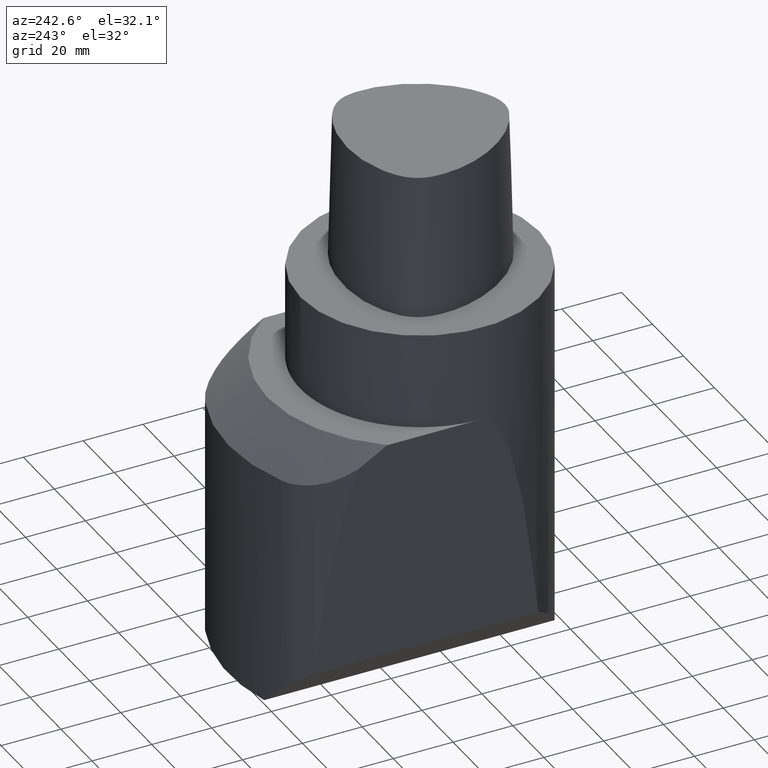
[diagram: clean part render]
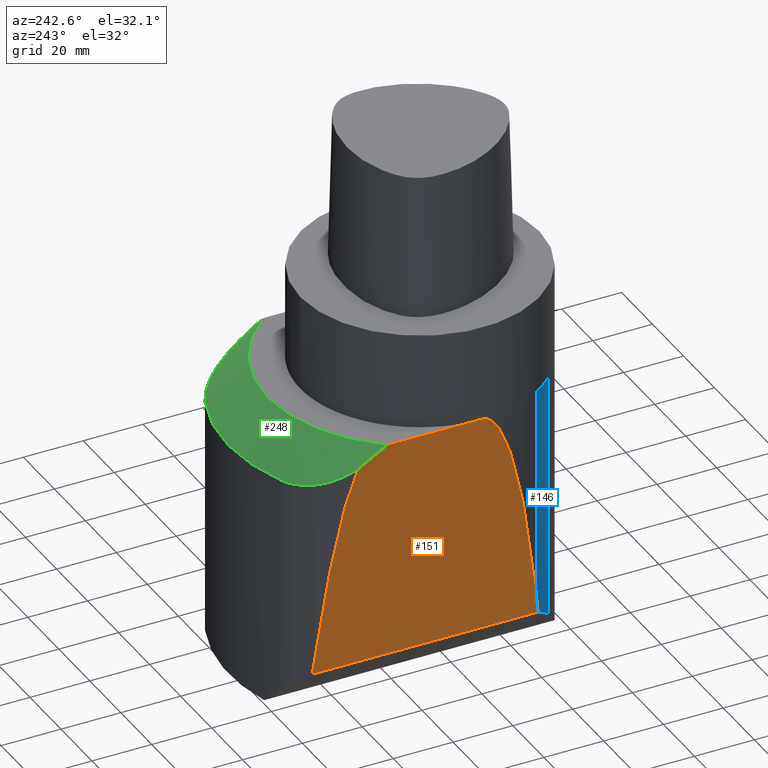
[diagram: same view with three faces highlighted in distinct colors, each labeled with its STEP entity id]
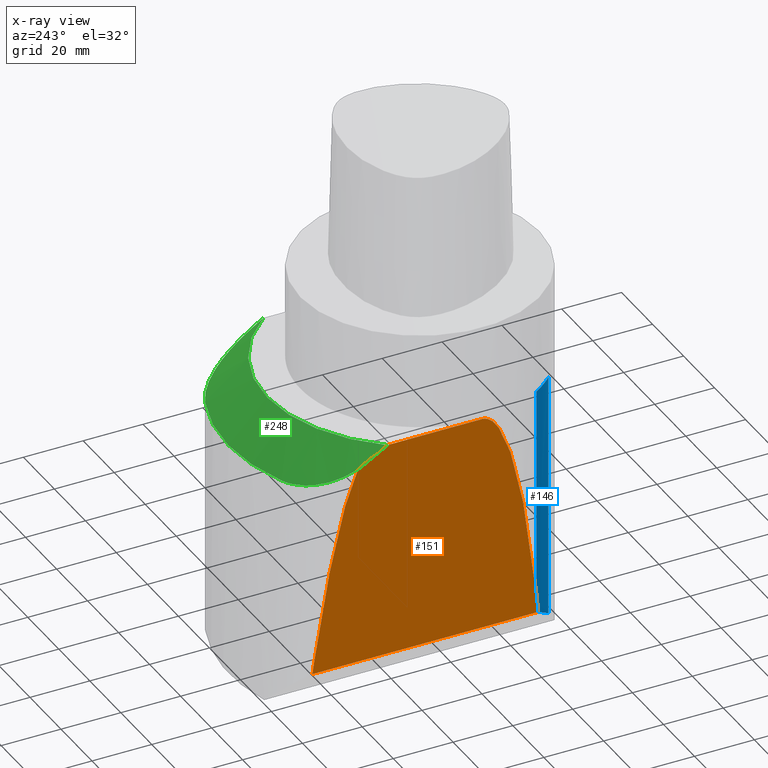
[diagram: x-ray of the same camera — body ghosted, the three highlighted faces saturated]
A machine part, auxiliary view with three faces highlighted in distinct colors.
The next image is the same camera in x-ray (body ghosted, the three faces saturated) — at least one of them is partly hidden behind the body in this view.
Their STEP definitions:

[orange] entity #151 — the highlighted planar face has unit normal (-0.9962, 0, -0.0872).
#107=EDGE_CURVE('240[2]',#309,#310,#311,.T.);
#151=ADVANCED_FACE('240[2]',(#377),#378,.T.);
#157=EDGE_CURVE('240[2]',#385,#386,#387,.T.);
#210=EDGE_CURVE('240[2]',#309,#325,#455,.T.);
#228=EDGE_CURVE('240[2]',#410,#425,#478,.T.);
#238=EDGE_CURVE('240[2]',#425,#325,#490,.F.);
#250=EDGE_CURVE('240[2]',#386,#410,#504,.T.);
#257=EDGE_CURVE('240[2]',#310,#385,#514,.T.);
#309=VERTEX_POINT('',#564);
#310=VERTEX_POINT('',#565);
#311=ELLIPSE('',#566,458.948523763496,40.0000000000002);
#325=VERTEX_POINT('',#679);
#377=FACE_OUTER_BOUND('',#823,.T.);
#378=PLANE('',#824);
#385=VERTEX_POINT('',#834);
#386=VERTEX_POINT('',#835);
#387=(B_SPLINE_CURVE(2,(#837,#838,#839),.UNSPECIFIED.,.F.,.F.)B_SPLINE_CURVE_WITH_KNOTS((3,3),(-683.893047471519,-605.25520069249),.UNSPECIFIED.)RATIONAL_B_SPLINE_CURVE((8.00431166488062,7.80084808983328,7.55156646224911))BOUNDED_CURVE()REPRESENTATION_ITEM('')GEOMETRIC_REPRESENTATION_ITEM()CURVE());
#410=VERTEX_POINT('',#880);
#425=VERTEX_POINT('',#938);
#455=B_SPLINE_CURVE_WITH_KNOTS('',3,(#989,#990,#991,#992),.UNSPECIFIED.,.F.,.F.,(4,4),(104.336746721873,111.165197061274),.UNSPECIFIED.);
#478=B_SPLINE_CURVE_WITH_KNOTS('',3,(#1413,#1414,#1415,#1416,#1417,#1418),.UNSPECIFIED.,.F.,.F.,(4,2,4),(-157.671110531272,-154.712107657172,-151.817991678916),.UNSPECIFIED.);
#490=LINE('',#1433,#1434);
#504=ELLIPSE('',#1454,286.842827352184,25.0000000000001);
#514=LINE('',#1467,#1468);
#564=CARTESIAN_POINT('',(-33.7969778634041,-21.3954267847245,-102.900866511766));
#565=CARTESIAN_POINT('',(-39.9999999999993,6.82121026329696E-013,-32.000000000002));
#566=AXIS2_PLACEMENT_3D('',#1624,#1625,#1626);
#679=CARTESIAN_POINT('',(-33.1927473655532,-22.3213156473424,-109.807252613167));
#823=EDGE_LOOP('',(#1687,#1688,#1689,#1690,#1691,#1692,#1693));
#824=AXIS2_PLACEMENT_3D('',#1694,#1695,#1696);
#834=CARTESIAN_POINT('',(-39.9999999999991,31.6385840391139,-32.0000000000025));
#835=CARTESIAN_POINT('',(-39.476915664123,41.0872978654076,-37.978881317847));
#837=CARTESIAN_POINT('',(-39.9999999999291,31.6385840391341,-31.9999999999601));
#838=CARTESIAN_POINT('',(-39.7724379890203,36.1190566330475,-34.6010456521432));
#839=CARTESIAN_POINT('',(-39.4769156573647,41.0872978674441,-37.978881314633));
#880=CARTESIAN_POINT('',(-33.6636013333268,52.6333996907019,-104.425367206216));
#938=CARTESIAN_POINT('',(-33.1927473655513,53.147149727209,-109.80725261317));
#989=CARTESIAN_POINT('',(-33.7969778634041,-21.3954267847245,-102.900866511766));
#990=CARTESIAN_POINT('',(-33.6072448787171,-21.6951357621519,-105.069524421427));
#991=CARTESIAN_POINT('',(-33.4175394624925,-21.9870632463833,-107.237867222108));
#992=CARTESIAN_POINT('',(-33.1927473655532,-22.3213156473424,-109.807252613167));
#1413=CARTESIAN_POINT('',(-33.6636013333268,52.6333996907019,-104.425367206216));
#1414=CARTESIAN_POINT('',(-33.6241078454418,52.6777140657456,-104.876779832351));
#1415=CARTESIAN_POINT('',(-33.5537778230764,52.7564182292292,-105.680655655739));
#1416=CARTESIAN_POINT('',(-33.3727597581197,52.9547045859767,-107.749701578395));
#1417=CARTESIAN_POINT('',(-33.2825779214066,53.0518652033815,-108.780484675027));
#1418=CARTESIAN_POINT('',(-33.1927473655513,53.147149727209,-109.80725261317));
#1433=CARTESIAN_POINT('',(-33.1927473655551,-162.24514126896,-109.807252613163));
#1434=VECTOR('',#1805,1.0);
#1454=AXIS2_PLACEMENT_3D('',#1831,#1832,#1833);
#1467=CARTESIAN_POINT('',(-39.9999999999991,6.82121026329696E-013,-32.0000000000025));
#1468=VECTOR('',#1848,27.4531951389418);
#1624=CARTESIAN_POINT('',(8.22696294472897E-013,7.38964445190504E-013,-489.202086023152));
#1625=DIRECTION('',(-0.996194697991007,1.06735002793336E-017,-0.0871557438990976));
#1626=DIRECTION('',(0.0871557438990976,1.32672165101559E-016,-0.996194697991008));
#1687=ORIENTED_EDGE('',*,*,#157,.T.);
#1688=ORIENTED_EDGE('',*,*,#250,.T.);
#1689=ORIENTED_EDGE('',*,*,#228,.T.);
#1690=ORIENTED_EDGE('',*,*,#238,.T.);
#1691=ORIENTED_EDGE('',*,*,#210,.F.);
#1692=ORIENTED_EDGE('',*,*,#107,.T.);
#1693=ORIENTED_EDGE('',*,*,#257,.T.);
#1694=CARTESIAN_POINT('',(-36.9135946481598,-162.24514126896,-67.2777741285733));
#1695=DIRECTION('',(-0.996194697991008,1.06735002793336E-017,-0.0871557438990975));
#1696=DIRECTION('',(-0.0871557438990975,0.0,0.996194697991008));
#1805=DIRECTION('',(-3.59545812250935E-032,1.0,1.22464679914735E-016));
#1831=CARTESIAN_POINT('',(-14.9999999999992,36.0000000000009,-317.751303764155));
#1832=DIRECTION('',(-0.996194697991008,1.06735002793336E-017,-0.0871557438990975));
#1833=DIRECTION('',(0.0871557438990975,1.32672165101559E-016,-0.996194697991008));
#1848=DIRECTION('',(0.0,1.0,0.0));

[blue] entity #146 — the highlighted face is a freeform B-spline surface patch.
#117=EDGE_CURVE('240[2]',#324,#325,#326,.T.);
#121=EDGE_CURVE('240[2]',#324,#332,#333,.T.);
#146=ADVANCED_FACE('240[2]',(#370),#371,.T.);
#155=EDGE_CURVE('240[2]',#332,#382,#383,.T.);
#208=EDGE_CURVE('240[2]',#309,#382,#453,.T.);
#210=EDGE_CURVE('240[2]',#309,#325,#455,.T.);
#309=VERTEX_POINT('',#564);
#324=VERTEX_POINT('',#678);
#325=VERTEX_POINT('',#679);
#326=B_SPLINE_CURVE_WITH_KNOTS('',3,(#680,#681,#682,#683,#684,#685,#686,#687,#688,#689,#690,#691),.UNSPECIFIED.,.F.,.F.,(4,2,2,2,2,4),(-175.538141070274,-175.479261481458,-175.15793466903,-174.392329393093,-171.030326775526,-170.093878497624),.UNSPECIFIED.);
#332=VERTEX_POINT('',#699);
#333=LINE('',#700,#701);
#370=FACE_OUTER_BOUND('',#754,.T.);
#371=B_SPLINE_SURFACE_WITH_KNOTS('',3,1,((#755,#756,#757),(#758,#759,#760),(#761,#762,#763),(#764,#765,#766),(#767,#768,#769),(#770,#771,#772),(#773,#774,#775),(#776,#777,#778),(#779,#780,#781),(#782,#783,#784),(#785,#786,#787),(#788,#789,#790),(#791,#792,#793),(#794,#795,#796),(#797,#798,#799),(#800,#801,#802),(#803,#804,#805),(#806,#807,#808),(#809,#810,#811),(#812,#813,#814)),.UNSPECIFIED.,.F.,.F.,.F.,(4,3,2,2,2,2,2,3,4),(2,1,2),(-63.2741086176597,0.0,0.0175600176839423,0.148866729432548,0.411480152929759,0.674093576426971,0.936706999924182,1.0,13.1942042593001),(-25.3342554178215,111.18791682274,236.18791682274),.UNSPECIFIED.);
#382=VERTEX_POINT('',#830);
#383=CIRCLE('',#831,40.0067927914064);
#453=LINE('',#985,#986);
#455=B_SPLINE_CURVE_WITH_KNOTS('',3,(#989,#990,#991,#992),.UNSPECIFIED.,.F.,.F.,(4,4),(104.336746721873,111.165197061274),.UNSPECIFIED.);
#564=CARTESIAN_POINT('',(-33.7969778634041,-21.3954267847245,-102.900866511766));
#678=CARTESIAN_POINT('',(-28.2905413646907,-28.2779997399503,-114.709458599246));
#679=CARTESIAN_POINT('',(-33.1927473655532,-22.3213156473424,-109.807252613167));
#680=CARTESIAN_POINT('',(-28.2905413646907,-28.2779997399503,-114.709458599246));
#681=CARTESIAN_POINT('',(-28.309842062676,-28.258690481879,-114.690157901319));
#682=CARTESIAN_POINT('',(-28.3291295821897,-28.2393548483322,-114.670870381864));
#683=CARTESIAN_POINT('',(-28.4535903780425,-28.1143275072564,-114.546409586386));
#684=CARTESIAN_POINT('',(-28.5583980496744,-28.0078608855346,-114.44160191507));
#685=CARTESIAN_POINT('',(-28.9115006445737,-27.645113240572,-114.088499321236));
#686=CARTESIAN_POINT('',(-29.1539161039658,-27.3892416967969,-113.846083862575));
#687=CARTESIAN_POINT('',(-30.461521996051,-25.9714413006834,-112.538477974433));
#688=CARTESIAN_POINT('',(-31.4710181159656,-24.7413436216045,-111.528981857561));
#689=CARTESIAN_POINT('',(-32.6714875595446,-23.0819154087392,-110.328512417602));
#690=CARTESIAN_POINT('',(-32.935289492501,-22.7041401032962,-110.064710485442));
#691=CARTESIAN_POINT('',(-33.1927473655532,-22.3213156473424,-109.807252613167));
#699=CARTESIAN_POINT('',(-28.2905413646907,-28.2779997399503,-32.0000000000016));
#700=CARTESIAN_POINT('',(-28.2905413646907,-28.2779997399503,-114.705134762494));
#701=VECTOR('',#1647,82.7051347624924);
#754=EDGE_LOOP('',(#1680,#1681,#1682,#1683,#1684));
#755=CARTESIAN_POINT('',(-113.616978290069,104.691087616467,-261.522172240565));
#756=CARTESIAN_POINT('',(-113.616978290069,104.691087616467,-125.000000000003));
#757=CARTESIAN_POINT('',(-113.616978290069,104.691087616467,-2.72848410531878E-012));
#758=CARTESIAN_POINT('',(-87.0103114811805,62.6622494827363,-261.522172240565));
#759=CARTESIAN_POINT('',(-87.0103114811805,62.6622494827363,-125.000000000003));
#760=CARTESIAN_POINT('',(-87.0103114811805,62.6622494827363,-2.72848410531878E-012));
#761=CARTESIAN_POINT('',(-60.4036446722923,20.6334113490061,-261.522172240565));
#762=CARTESIAN_POINT('',(-60.4036446722923,20.6334113490061,-125.000000000003));
#763=CARTESIAN_POINT('',(-60.4036446722923,20.6334113490061,-2.72848410531878E-012));
#764=CARTESIAN_POINT('',(-33.796977863404,-21.3954267847242,-261.522172240565));
#765=CARTESIAN_POINT('',(-33.796977863404,-21.3954267847242,-125.000000000003));
#766=CARTESIAN_POINT('',(-33.796977863404,-21.3954267847242,-2.72848410531878E-012));
#767=CARTESIAN_POINT('',(-33.7895939025726,-21.407090752135,-261.522172240565));
#768=CARTESIAN_POINT('',(-33.7895939025726,-21.407090752135,-125.000000000003));
#769=CARTESIAN_POINT('',(-33.7895939025726,-21.407090752135,-2.72848410531878E-012));
#770=CARTESIAN_POINT('',(-33.7816577044912,-21.4196137539597,-261.522172240565));
#771=CARTESIAN_POINT('',(-33.7816577044912,-21.4196137539597,-125.000000000003));
#772=CARTESIAN_POINT('',(-33.7816577044912,-21.4196137539597,-2.72848410531878E-012));
#773=CARTESIAN_POINT('',(-33.7097436643099,-21.5329328249091,-261.522172240565));
#774=CARTESIAN_POINT('',(-33.7097436643099,-21.5329328249091,-125.000000000003));
#775=CARTESIAN_POINT('',(-33.7097436643099,-21.5329328249091,-2.72848410531878E-012));
#776=CARTESIAN_POINT('',(-33.6157367939555,-21.6802256330895,-261.522172240565));
#777=CARTESIAN_POINT('',(-33.6157367939555,-21.6802256330895,-125.000000000003));
#778=CARTESIAN_POINT('',(-33.6157367939555,-21.6802256330895,-2.72848410531878E-012));
#779=CARTESIAN_POINT('',(-33.2492169109592,-22.2416130067496,-261.522172240565));
#780=CARTESIAN_POINT('',(-33.2492169109592,-22.2416130067496,-125.000000000003));
#781=CARTESIAN_POINT('',(-33.2492169109592,-22.2416130067496,-2.72848410531878E-012));
#782=CARTESIAN_POINT('',(-32.8920078719621,-22.7751598354021,-261.522172240565));
#783=CARTESIAN_POINT('',(-32.8920078719621,-22.7751598354021,-125.000000000003));
#784=CARTESIAN_POINT('',(-32.8920078719621,-22.7751598354021,-2.72848410531878E-012));
#785=CARTESIAN_POINT('',(-31.991754842178,-24.0233159523287,-261.522172240565));
#786=CARTESIAN_POINT('',(-31.991754842178,-24.0233159523287,-125.000000000003));
#787=CARTESIAN_POINT('',(-31.991754842178,-24.0233159523287,-2.72848410531878E-012));
#788=CARTESIAN_POINT('',(-31.447934505811,-24.7376991117969,-261.522172240565));
#789=CARTESIAN_POINT('',(-31.447934505811,-24.7376991117969,-125.000000000003));
#790=CARTESIAN_POINT('',(-31.447934505811,-24.7376991117969,-2.72848410531878E-012));
#791=CARTESIAN_POINT('',(-30.2217694003244,-26.2215750208795,-261.522172240565));
#792=CARTESIAN_POINT('',(-30.2217694003244,-26.2215750208795,-125.000000000003));
#793=CARTESIAN_POINT('',(-30.2217694003244,-26.2215750208795,-2.72848410531878E-012));
#794=CARTESIAN_POINT('',(-29.5389592417333,-26.9910292634445,-261.522172240565));
#795=CARTESIAN_POINT('',(-29.5389592417333,-26.9910292634445,-125.000000000003));
#796=CARTESIAN_POINT('',(-29.5389592417333,-26.9910292634445,-2.72848410531878E-012));
#797=CARTESIAN_POINT('',(-28.6506267037283,-27.9142167520785,-261.522172240565));
#798=CARTESIAN_POINT('',(-28.6506267037283,-27.9142167520785,-125.000000000003));
#799=CARTESIAN_POINT('',(-28.6506267037283,-27.9142167520785,-2.72848410531878E-012));
#800=CARTESIAN_POINT('',(-28.4730655503268,-28.0953946026959,-261.522172240565));
#801=CARTESIAN_POINT('',(-28.4730655503268,-28.0953946026959,-125.000000000003));
#802=CARTESIAN_POINT('',(-28.4730655503268,-28.0953946026959,-2.72848410531878E-012));
#803=CARTESIAN_POINT('',(-28.29054136469,-28.277999739951,-261.522172240565));
#804=CARTESIAN_POINT('',(-28.29054136469,-28.277999739951,-125.000000000003));
#805=CARTESIAN_POINT('',(-28.29054136469,-28.277999739951,-2.72848410531878E-012));
#806=CARTESIAN_POINT('',(6.87507251443359,-63.4592099815074,-261.522172240565));
#807=CARTESIAN_POINT('',(6.87507251443359,-63.4592099815074,-125.000000000003));
#808=CARTESIAN_POINT('',(6.87507251443359,-63.4592099815074,-2.72848410531878E-012));
#809=CARTESIAN_POINT('',(42.0406863935572,-98.6404202230638,-261.522172240565));
#810=CARTESIAN_POINT('',(42.0406863935572,-98.6404202230638,-125.000000000003));
#811=CARTESIAN_POINT('',(42.0406863935572,-98.6404202230638,-2.72848410531878E-012));
#812=CARTESIAN_POINT('',(77.2063002726808,-133.82163046462,-261.522172240565));
#813=CARTESIAN_POINT('',(77.2063002726808,-133.82163046462,-125.000000000003));
#814=CARTESIAN_POINT('',(77.2063002726808,-133.82163046462,-2.72848410531878E-012));
#830=CARTESIAN_POINT('',(-33.7969778634041,-21.3954267847245,-32.0000000000017));
#831=AXIS2_PLACEMENT_3D('',#1700,#1701,#1702);
#985=CARTESIAN_POINT('',(-33.7969778634041,-21.3954267847245,-102.871898242106));
#986=VECTOR('',#1759,70.8718982421043);
#989=CARTESIAN_POINT('',(-33.7969778634041,-21.3954267847245,-102.900866511766));
#990=CARTESIAN_POINT('',(-33.6072448787171,-21.6951357621519,-105.069524421427));
#991=CARTESIAN_POINT('',(-33.4175394624925,-21.9870632463833,-107.237867222108));
#992=CARTESIAN_POINT('',(-33.1927473655532,-22.3213156473424,-109.807252613167));
#1647=DIRECTION('',(0.0,0.0,1.0));
#1680=ORIENTED_EDGE('',*,*,#121,.T.);
#1681=ORIENTED_EDGE('',*,*,#155,.T.);
#1682=ORIENTED_EDGE('',*,*,#208,.F.);
#1683=ORIENTED_EDGE('',*,*,#210,.T.);
#1684=ORIENTED_EDGE('',*,*,#117,.F.);
#1700=CARTESIAN_POINT('',(0.00533662121231959,0.00426959016913919,-32.0000000000034));
#1701=DIRECTION('',(-3.38247413703787E-014,-2.89973630552442E-014,-1.0));
#1702=DIRECTION('',(-0.707276840046533,-0.706936681417644,4.44227557999696E-014));
#1759=DIRECTION('',(0.0,0.0,1.0));

[green] entity #248 — the highlighted conical surface has half-angle 45 deg.
#119=EDGE_CURVE('240[2]',#328,#329,#330,.T.);
#131=EDGE_CURVE('240[2]',#347,#329,#348,.T.);
#153=EDGE_CURVE('240[2]',#351,#335,#380,.T.);
#157=EDGE_CURVE('240[2]',#385,#386,#387,.T.);
#182=EDGE_CURVE('240[2]',#386,#411,#421,.T.);
#184=EDGE_CURVE('240[2]',#328,#414,#423,.T.);
#212=EDGE_CURVE('240[2]',#414,#351,#457,.T.);
#248=ADVANCED_FACE('240[2]',(#501),#502,.T.);
#261=EDGE_CURVE('240[2]',#335,#385,#518,.T.);
#273=EDGE_CURVE('240[2]',#411,#347,#532,.T.);
#328=VERTEX_POINT('',#694);
#329=VERTEX_POINT('',#695);
#330=CIRCLE('',#696,64.0000000000002);
#335=VERTEX_POINT('',#704);
#347=VERTEX_POINT('',#720);
#348=CIRCLE('',#721,21.4228384021727);
#351=VERTEX_POINT('',#725);
#380=CIRCLE('',#827,150.651933760662);
#385=VERTEX_POINT('',#834);
#386=VERTEX_POINT('',#835);
#387=(B_SPLINE_CURVE(2,(#837,#838,#839),.UNSPECIFIED.,.F.,.F.)B_SPLINE_CURVE_WITH_KNOTS((3,3),(-683.893047471519,-605.25520069249),.UNSPECIFIED.)RATIONAL_B_SPLINE_CURVE((8.00431166488062,7.80084808983328,7.55156646224911))BOUNDED_CURVE()REPRESENTATION_ITEM('')GEOMETRIC_REPRESENTATION_ITEM()CURVE());
#411=VERTEX_POINT('',#881);
#414=VERTEX_POINT('',#886);
#421=B_SPLINE_CURVE_WITH_KNOTS('',3,(#898,#899,#900,#901,#902,#903,#904,#905,#906,#907,#908,#909,#910,#911),.UNSPECIFIED.,.F.,.F.,(4,2,2,2,2,2,4),(11.9216219311241,12.5798861849235,15.0958634219082,17.6118406588929,20.1278178958776,24.2017614135647,25.6110209828192),.UNSPECIFIED.);
#423=B_SPLINE_CURVE_WITH_KNOTS('',3,(#914,#915,#916,#917,#918,#919,#920,#921,#922,#923,#924,#925,#926,#927,#928,#929,#930,#931,#932,#933,#934,#935),.UNSPECIFIED.,.F.,.F.,(4,2,2,2,2,2,2,2,2,2,4),(36.4231485541694,36.4233471363253,38.4603021409084,40.4972571454915,42.5342121500746,44.5711671546576,48.6450771638238,52.71898717299,55.2349505604476,57.7509139479051,58.3140038372895),.UNSPECIFIED.);
#457=B_SPLINE_CURVE_WITH_KNOTS('',3,(#995,#996,#997,#998,#999,#1000,#1001,#1002),.UNSPECIFIED.,.F.,.F.,(4,2,2,4),(58.3216321938797,60.2734027898837,62.7896201586019,66.5642438074857),.UNSPECIFIED.);
#501=FACE_OUTER_BOUND('',#1450,.T.);
#502=CONICAL_SURFACE('',#1451,57.5000000000002,0.785398163397456);
#518=CIRCLE('',#1474,51.0000000000002);
#532=B_SPLINE_CURVE_WITH_KNOTS('',3,(#1495,#1496,#1497,#1498,#1499,#1500),.UNSPECIFIED.,.F.,.F.,(4,2,4),(7.79050749938835E-014,1.69320901081214,3.66958667680222),.UNSPECIFIED.);
#694=CARTESIAN_POINT('',(24.6153846153862,59.0769230769235,-45.0000000000037));
#695=CARTESIAN_POINT('',(-24.6153846153838,59.0769230769239,-45.000000000003));
#696=AXIS2_PLACEMENT_3D('',#1644,#1645,#1646);
#704=CARTESIAN_POINT('',(40.0000000000009,31.6385840391118,-32.0000000000028));
#720=CARTESIAN_POINT('',(-28.29054136469,57.1745486429694,-44.790937783002));
#721=AXIS2_PLACEMENT_3D('',#1666,#1667,#1668);
#725=CARTESIAN_POINT('',(40.0000000000009,36.0000000000009,-34.8144961882987));
#827=AXIS2_PLACEMENT_3D('',#1697,#1698,#1699);
#834=CARTESIAN_POINT('',(-39.9999999999991,31.6385840391139,-32.0000000000025));
#835=CARTESIAN_POINT('',(-39.476915664123,41.0872978654076,-37.978881317847));
#837=CARTESIAN_POINT('',(-39.9999999999291,31.6385840391341,-31.9999999999601));
#838=CARTESIAN_POINT('',(-39.7724379890203,36.1190566330475,-34.6010456521432));
#839=CARTESIAN_POINT('',(-39.4769156573647,41.0872978674441,-37.978881314633));
#881=CARTESIAN_POINT('',(-33.6636013357642,52.6333996928742,-43.4780987076547));
#886=CARTESIAN_POINT('',(38.8650636045326,43.4470624511728,-39.2935708686709));
#898=CARTESIAN_POINT('',(-39.4769022895487,41.0872981949383,-37.9788759307841));
#899=CARTESIAN_POINT('',(-39.4354348908527,41.2868410700234,-38.0940341171367));
#900=CARTESIAN_POINT('',(-39.3914564973517,41.4862241474421,-38.2080813814551));
#901=CARTESIAN_POINT('',(-39.1672377574568,42.4463434906348,-38.752402598454));
#902=CARTESIAN_POINT('',(-38.9527058004631,43.2033128153989,-39.1667904446922));
#903=CARTESIAN_POINT('',(-38.4520036291537,44.6961690596028,-39.9562557749922));
#904=CARTESIAN_POINT('',(-38.1658035792832,45.4321180306143,-40.3313706686812));
#905=CARTESIAN_POINT('',(-37.526711383441,46.8704452652149,-41.0383072749407));
#906=CARTESIAN_POINT('',(-37.1738103901352,47.5728189961114,-41.3701302113944));
#907=CARTESIAN_POINT('',(-36.1728604857019,49.3530563328857,-42.1788840109718));
#908=CARTESIAN_POINT('',(-35.4357500216311,50.4655415513507,-42.65034227017));
#909=CARTESIAN_POINT('',(-34.2913367741387,51.9081206667723,-43.2104936296015));
#910=CARTESIAN_POINT('',(-33.9836529399934,52.2740050965787,-43.3478539634118));
#911=CARTESIAN_POINT('',(-33.6633732594922,52.6332477042976,-43.4779569167373));
#914=CARTESIAN_POINT('',(24.6153846153767,59.0769230769236,-45.0000000000017));
#915=CARTESIAN_POINT('',(24.615445717908,59.0768976178853,-45.0000000003234));
#916=CARTESIAN_POINT('',(24.6155068202378,59.0768721586448,-45.0000000004843));
#917=CARTESIAN_POINT('',(25.2423224980849,58.815696676964,-45.0000000004843));
#918=CARTESIAN_POINT('',(25.868907106102,58.5245155998732,-44.9830750109901));
#919=CARTESIAN_POINT('',(27.1080441426649,57.8833838449597,-44.9128061454171));
#920=CARTESIAN_POINT('',(27.7205976650058,57.5334350745424,-44.8594641544699));
#921=CARTESIAN_POINT('',(28.9194143070726,56.7786561725043,-44.7153968545533));
#922=CARTESIAN_POINT('',(29.5057468973081,56.373786006701,-44.6246645698134));
#923=CARTESIAN_POINT('',(30.6416537619001,55.5152931372474,-44.406338881082));
#924=CARTESIAN_POINT('',(31.1912299627898,55.0616730052511,-44.2787453883167));
#925=CARTESIAN_POINT('',(32.7717279264879,53.6401626190047,-43.8436872145184));
#926=CARTESIAN_POINT('',(33.735266040463,52.6091211913375,-43.482711842329));
#927=CARTESIAN_POINT('',(35.4358083829579,50.4655013336937,-42.6503431654704));
#928=CARTESIAN_POINT('',(36.1729075321799,49.3530232473167,-42.1788853748937));
#929=CARTESIAN_POINT('',(37.1738417149353,47.5727964473681,-41.3701317998467));
#930=CARTESIAN_POINT('',(37.526737246582,46.8704259423907,-41.0383084299897));
#931=CARTESIAN_POINT('',(38.1658184936294,45.4321058329714,-40.3313709975266));
#932=CARTESIAN_POINT('',(38.4520130564005,44.6961607611856,-39.956255711054));
#933=CARTESIAN_POINT('',(38.7583878011159,43.782682053098,-39.4731787299849));
#934=CARTESIAN_POINT('',(38.8126227212439,43.6150992665858,-39.3838502520136));
#935=CARTESIAN_POINT('',(38.8650523634539,43.4470613336034,-39.293566420756));
#995=CARTESIAN_POINT('',(38.8650523250574,43.4470613296989,-39.2935664060147));
#996=CARTESIAN_POINT('',(39.0467786168551,42.8646074249701,-38.9806204209285));
#997=CARTESIAN_POINT('',(39.2068174045358,42.2766865867339,-38.6561986316717));
#998=CARTESIAN_POINT('',(39.5224706462489,40.9252476761732,-37.8900422133055));
#999=CARTESIAN_POINT('',(39.6634266687771,40.1601217882488,-37.4415101156143));
#1000=CARTESIAN_POINT('',(39.9249772408726,38.2534097911671,-36.2853945824886));
#1001=CARTESIAN_POINT('',(39.9995566059418,37.1139766974781,-35.5594502190855));
#1002=CARTESIAN_POINT('',(39.9998170923362,36.0000488887121,-34.814423028365));
#1450=EDGE_LOOP('',(#1819,#1820,#1821,#1822,#1823,#1824,#1825,#1826,#1827));
#1451=AXIS2_PLACEMENT_3D('',#1828,#1829,#1830);
#1474=AXIS2_PLACEMENT_3D('',#1852,#1853,#1854);
#1495=CARTESIAN_POINT('',(-33.6636013357642,52.6333996928742,-43.4780987076546));
#1496=CARTESIAN_POINT('',(-33.3011070229559,53.0401429254736,-43.6254369796464));
#1497=CARTESIAN_POINT('',(-32.6586001865985,53.7396399868975,-43.8735809754009));
#1498=CARTESIAN_POINT('',(-30.6810749666254,55.5227612965714,-44.4203078056542));
#1499=CARTESIAN_POINT('',(-29.5261634582089,56.3989908343032,-44.6438048196785));
#1500=CARTESIAN_POINT('',(-28.2905413646901,57.1745486429695,-44.7909377830022));
#1644=CARTESIAN_POINT('',(-2.7554552980817E-015,-1.70530256582424E-013,-45.0000000000025));
#1645=DIRECTION('',(0.0,-0.0,1.0));
#1646=DIRECTION('',(0.0,1.0,0.0));
#1666=CARTESIAN_POINT('',(-17.5817522098332,42.2036228731038,-33.8304986404544));
#1667=DIRECTION('',(0.200573170310547,-0.481259306856336,-0.853322847998186));
#1668=DIRECTION('',(-0.499877229128668,0.698830164879159,-0.511624038189775));
#1697=CARTESIAN_POINT('',(39.9999999999744,-47.8549702515552,-159.971793658073));
#1698=DIRECTION('',(1.0,-9.3994254394356E-014,-1.48811651366276E-013));
#1699=DIRECTION('',(1.75946958405353E-013,0.55661396543888,0.830771264234871));
#1819=ORIENTED_EDGE('',*,*,#261,.F.);
#1820=ORIENTED_EDGE('',*,*,#153,.F.);
#1821=ORIENTED_EDGE('',*,*,#212,.F.);
#1822=ORIENTED_EDGE('',*,*,#184,.F.);
#1823=ORIENTED_EDGE('',*,*,#119,.T.);
#1824=ORIENTED_EDGE('',*,*,#131,.F.);
#1825=ORIENTED_EDGE('',*,*,#273,.F.);
#1826=ORIENTED_EDGE('',*,*,#182,.F.);
#1827=ORIENTED_EDGE('',*,*,#157,.F.);
#1828=CARTESIAN_POINT('',(-2.35744508835881E-015,-1.13686837721616E-013,-38.5000000000025));
#1829=DIRECTION('',(-0.0,0.0,-1.0));
#1830=DIRECTION('',(0.0,1.0,0.0));
#1852=CARTESIAN_POINT('',(-1.95943487863593E-015,-1.13686837721616E-013,-32.0000000000026));
#1853=DIRECTION('',(0.0,-0.0,1.0));
#1854=DIRECTION('',(0.0,1.0,0.0));